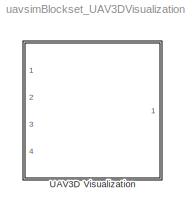
MODEL uavsimBlockset_UAV3DVisualization
KIND library
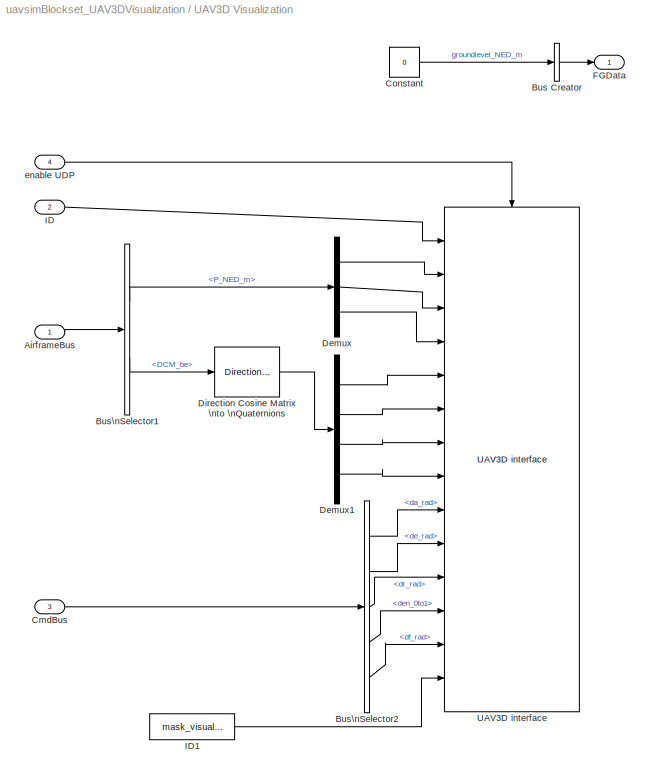
BLOCK [SubSystem] UAV3D Visualization
  Ports = [4, 1]
  RequestExecContextInheritance = off
  SID = 4288
  SystemSampleTime = uavsim.simConfig.tsample_UAV3D
  TreatAsAtomicUnit = on
  Variant = off
BLOCK [Inport] UAV3D Visualization/AirframeBus
  IconDisplay = Port number
  OutDataTypeStr = Bus: Airframe
  SID = 4289
BLOCK [BusCreator] UAV3D Visualization/Bus Creator
  DisplayOption = bar
  InheritFromInputs = on
  Inputs = 1
  OutDataTypeStr = Bus: FlightGearData
  Ports = [1, 1]
  SID = 4405
BLOCK [BusSelector] UAV3D Visualization/Bus\nSelector1
  OutputSignals = Kinematics.Position.P_NED_m,Kinematics.Attitude.DCM_be
  Ports = [1, 2]
  SID = 4291
BLOCK [BusSelector] UAV3D Visualization/Bus\nSelector2
  OutputSignals = da_rad,de_rad,dr_rad,den_0to1,df_rad
  Ports = [1, 5]
  SID = 4428
BLOCK [Inport] UAV3D Visualization/CmdBus
  IconDisplay = Port number
  OutDataTypeStr = Bus: CMD
  Port = 3
  SID = 4427
BLOCK [Constant] UAV3D Visualization/Constant
  SID = 4384
  Value = 0
BLOCK [Demux] UAV3D Visualization/Demux
  DisplayOption = bar
  Outputs = 3
  Ports = [1, 3]
  SID = 4294
BLOCK [Demux] UAV3D Visualization/Demux1
  DisplayOption = bar
  Ports = [1, 4]
  SID = 4295
BLOCK [Reference] UAV3D Visualization/Direction Cosine Matrix  \nto \nQuaternions  REF=aerolibtransform2/Direction Cosine Matrix \nto Quaternions
  Ports = [1, 1]
  SID = 4296
  SourceBlock = aerolibtransform2/Direction Cosine Matrix \nto Quaternions
  SourceType = DCM2Quaternion
BLOCK [Outport] UAV3D Visualization/FGData
  IconDisplay = Port number
  OutDataTypeStr = Bus: FlightGearData
  SID = 4300
BLOCK [Inport] UAV3D Visualization/ID
  IconDisplay = Port number
  Port = 2
  SID = 4290
BLOCK [Constant] UAV3D Visualization/ID1
  SID = 4430
  Value = mask_visual-1
BLOCK [Reference] UAV3D Visualization/UAV3D interface  REF=uavsimBlockset_UAV3DInterface/UAV3D interface
  Ports = [14, 0, 1]
  SID = 4299
  SourceBlock = uavsimBlockset_UAV3DInterface/UAV3D interface
  ip = 'localhost'
  udpport = 4445
BLOCK [Inport] UAV3D Visualization/enable UDP
  IconDisplay = Port number
  Port = 4
  SID = 4435
LINE UAV3D Visualization/AirframeBus:1 -> UAV3D Visualization/Bus\nSelector1:1
LINE UAV3D Visualization/Bus Creator:1 -> UAV3D Visualization/FGData:1
LINE UAV3D Visualization/Bus\nSelector1:1 -> UAV3D Visualization/Demux:1
LINE UAV3D Visualization/Bus\nSelector1:2 -> UAV3D Visualization/Direction Cosine Matrix  \nto \nQuaternions:1
LINE UAV3D Visualization/Bus\nSelector2:1 -> UAV3D Visualization/UAV3D interface:9
LINE UAV3D Visualization/Bus\nSelector2:2 -> UAV3D Visualization/UAV3D interface:10
LINE UAV3D Visualization/Bus\nSelector2:3 -> UAV3D Visualization/UAV3D interface:11
LINE UAV3D Visualization/Bus\nSelector2:4 -> UAV3D Visualization/UAV3D interface:12
LINE UAV3D Visualization/Bus\nSelector2:5 -> UAV3D Visualization/UAV3D interface:13
LINE UAV3D Visualization/CmdBus:1 -> UAV3D Visualization/Bus\nSelector2:1
LINE UAV3D Visualization/Constant:1 -> UAV3D Visualization/Bus Creator:1
LINE UAV3D Visualization/Demux1:1 -> UAV3D Visualization/UAV3D interface:5
LINE UAV3D Visualization/Demux1:2 -> UAV3D Visualization/UAV3D interface:6
LINE UAV3D Visualization/Demux1:3 -> UAV3D Visualization/UAV3D interface:7
LINE UAV3D Visualization/Demux1:4 -> UAV3D Visualization/UAV3D interface:8
LINE UAV3D Visualization/Demux:1 -> UAV3D Visualization/UAV3D interface:2
LINE UAV3D Visualization/Demux:2 -> UAV3D Visualization/UAV3D interface:3
LINE UAV3D Visualization/Demux:3 -> UAV3D Visualization/UAV3D interface:4
LINE UAV3D Visualization/Direction Cosine Matrix  \nto \nQuaternions:1 -> UAV3D Visualization/Demux1:1
LINE UAV3D Visualization/ID1:1 -> UAV3D Visualization/UAV3D interface:14
LINE UAV3D Visualization/ID:1 -> UAV3D Visualization/UAV3D interface:1
LINE UAV3D Visualization/enable UDP:1 -> UAV3D Visualization/UAV3D interface:enable
